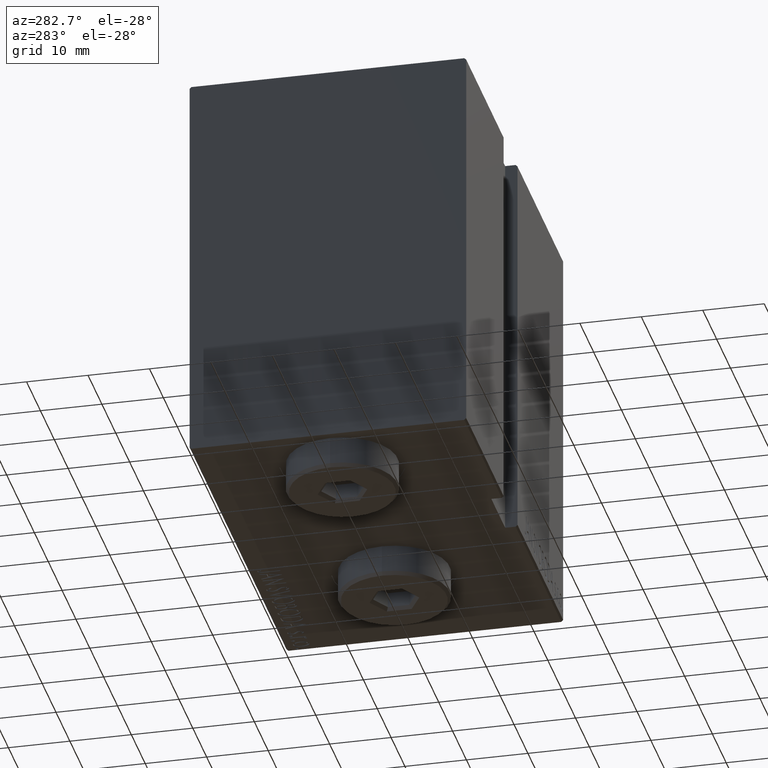
[diagram: clean part render]
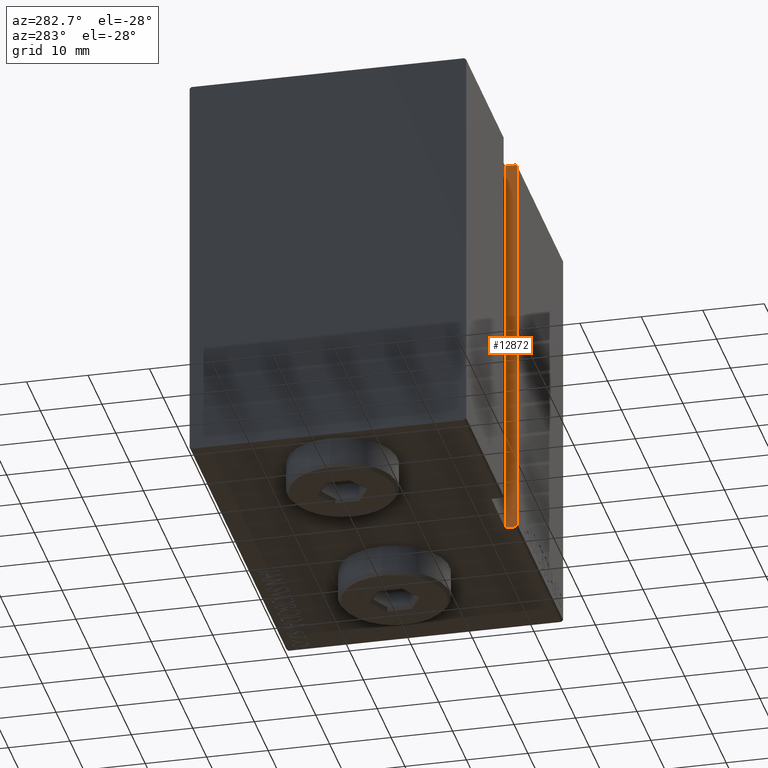
[diagram: same view with one face highlighted and labeled with its STEP entity id]
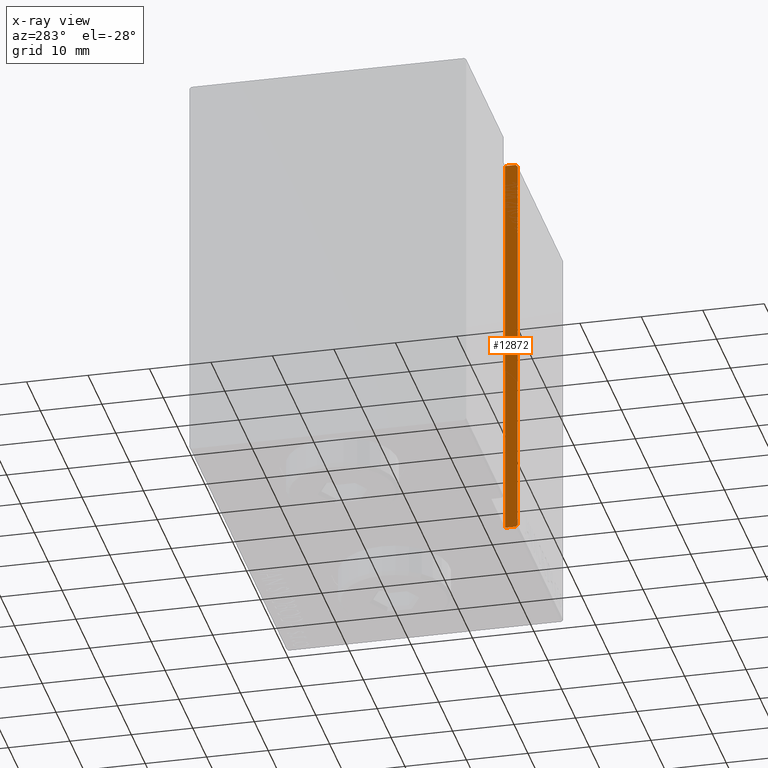
[diagram: x-ray of the same camera — body ghosted, the highlighted face saturated]
A machine part, auxiliary view. The second image highlights one B-rep face of the part: STEP entity #12872.
The next image is the same camera in x-ray: the body ghosted, the highlighted face saturated — about 0% of this face is hidden behind the body in this view.
In plain terms, the highlighted planar face has unit normal (1, 0, 0).
Its self-contained STEP definition (entity closure, byte-faithful):
#3117 = VERTEX_POINT ( 'NONE', #27566 ) ;
#3455 = VECTOR ( 'NONE', #14224, 1000.000000000000114 ) ;
#3792 = ORIENTED_EDGE ( 'NONE', *, *, #37925, .T. ) ;
#3991 = CARTESIAN_POINT ( 'NONE',  ( 33.00000000000000711, 20.49999999999999645, -32.50000000000000000 ) ) ;
#8121 = VERTEX_POINT ( 'NONE', #39860 ) ;
#9046 = VECTOR ( 'NONE', #40448, 1000.000000000000000 ) ;
#9426 = LINE ( 'NONE', #26821, #9046 ) ;
#12872 = ADVANCED_FACE ( 'NONE', ( #15107 ), #21814, .F. ) ;
#14224 = DIRECTION ( 'NONE',  ( 7.548521435979691857E-17, 0.7071067811865474617, 0.7071067811865474617 ) ) ;
#15101 = EDGE_CURVE ( 'NONE', #32716, #8121, #21623, .T. ) ;
#15107 = FACE_OUTER_BOUND ( 'NONE', #30283, .T. ) ;
#16680 = CARTESIAN_POINT ( 'NONE',  ( 33.00000000000000711, 20.49999999999999645, -32.50000000000000000 ) ) ;
#17572 = DIRECTION ( 'NONE',  ( 1.067522139062651164E-16, 0.000000000000000000, 1.000000000000000000 ) ) ;
#17791 = CARTESIAN_POINT ( 'NONE',  ( 33.00000000000000711, 20.49999999999999645, -32.50000000000000000 ) ) ;
#18414 = DIRECTION ( 'NONE',  ( 1.067522139062651164E-16, 0.000000000000000000, 1.000000000000000000 ) ) ;
#18654 = VECTOR ( 'NONE', #21551, 1000.000000000000000 ) ;
#20247 = ORIENTED_EDGE ( 'NONE', *, *, #25717, .T. ) ;
#21378 = LINE ( 'NONE', #28299, #3455 ) ;
#21403 = EDGE_CURVE ( 'NONE', #25301, #35995, #9426, .T. ) ;
#21551 = DIRECTION ( 'NONE',  ( -0.000000000000000000, 1.000000000000000000, -0.000000000000000000 ) ) ;
#21623 = LINE ( 'NONE', #3991, #38818 ) ;
#21814 = PLANE ( 'NONE',  #43231 ) ;
#21999 = VECTOR ( 'NONE', #37511, 1000.000000000000000 ) ;
#24488 = DIRECTION ( 'NONE',  ( -1.000000000000000000, 0.000000000000000000, 1.067522139062651164E-16 ) ) ;
#25301 = VERTEX_POINT ( 'NONE', #29661 ) ;
#25717 = EDGE_CURVE ( 'NONE', #3117, #43143, #21378, .T. ) ;
#25982 = CARTESIAN_POINT ( 'NONE',  ( 33.00000000000000711, 22.50000000000000000, -32.50000000000000000 ) ) ;
#26330 = EDGE_CURVE ( 'NONE', #32716, #3117, #37072, .T. ) ;
#26821 = CARTESIAN_POINT ( 'NONE',  ( 33.00000000000001421, 22.19999999999999574, 32.50000000000000711 ) ) ;
#27566 = CARTESIAN_POINT ( 'NONE',  ( 33.00000000000000711, 22.19999999999999574, -32.50000000000000000 ) ) ;
#27823 = ORIENTED_EDGE ( 'NONE', *, *, #15101, .F. ) ;
#28037 = CARTESIAN_POINT ( 'NONE',  ( 33.00000000000001421, 22.19999999999999929, 32.49999999999995737 ) ) ;
#28299 = CARTESIAN_POINT ( 'NONE',  ( 33.00000000000000711, 22.50000000000000711, -32.19999999999999574 ) ) ;
#29661 = CARTESIAN_POINT ( 'NONE',  ( 33.00000000000001421, 22.50000000000000000, 32.20000000000000284 ) ) ;
#30283 = EDGE_LOOP ( 'NONE', ( #3792, #37806, #33205, #27823, #40459, #20247 ) ) ;
#31819 = CARTESIAN_POINT ( 'NONE',  ( 33.00000000000001421, 20.49999999999999645, 32.49999999999995737 ) ) ;
#32039 = LINE ( 'NONE', #31819, #18654 ) ;
#32716 = VERTEX_POINT ( 'NONE', #16680 ) ;
#33205 = ORIENTED_EDGE ( 'NONE', *, *, #41271, .F. ) ;
#35815 = LINE ( 'NONE', #25982, #40726 ) ;
#35995 = VERTEX_POINT ( 'NONE', #28037 ) ;
#37072 = LINE ( 'NONE', #44004, #21999 ) ;
#37511 = DIRECTION ( 'NONE',  ( -0.000000000000000000, 1.000000000000000000, -0.000000000000000000 ) ) ;
#37806 = ORIENTED_EDGE ( 'NONE', *, *, #21403, .T. ) ;
#37925 = EDGE_CURVE ( 'NONE', #43143, #25301, #35815, .T. ) ;
#38621 = CARTESIAN_POINT ( 'NONE',  ( 33.00000000000000711, 22.50000000000000000, -32.19999999999999574 ) ) ;
#38818 = VECTOR ( 'NONE', #41267, 1000.000000000000000 ) ;
#39860 = CARTESIAN_POINT ( 'NONE',  ( 33.00000000000001421, 20.49999999999999645, 32.49999999999995737 ) ) ;
#40448 = DIRECTION ( 'NONE',  ( 7.548521435979779371E-17, -0.7071067811865393571, 0.7071067811865556774 ) ) ;
#40459 = ORIENTED_EDGE ( 'NONE', *, *, #26330, .T. ) ;
#40726 = VECTOR ( 'NONE', #18414, 1000.000000000000000 ) ;
#41267 = DIRECTION ( 'NONE',  ( 1.067522139062651164E-16, 0.000000000000000000, 1.000000000000000000 ) ) ;
#41271 = EDGE_CURVE ( 'NONE', #8121, #35995, #32039, .T. ) ;
#43143 = VERTEX_POINT ( 'NONE', #38621 ) ;
#43231 = AXIS2_PLACEMENT_3D ( 'NONE', #17791, #24488, #17572 ) ;
#44004 = CARTESIAN_POINT ( 'NONE',  ( 33.00000000000000711, 20.49999999999999645, -32.50000000000000000 ) ) ;